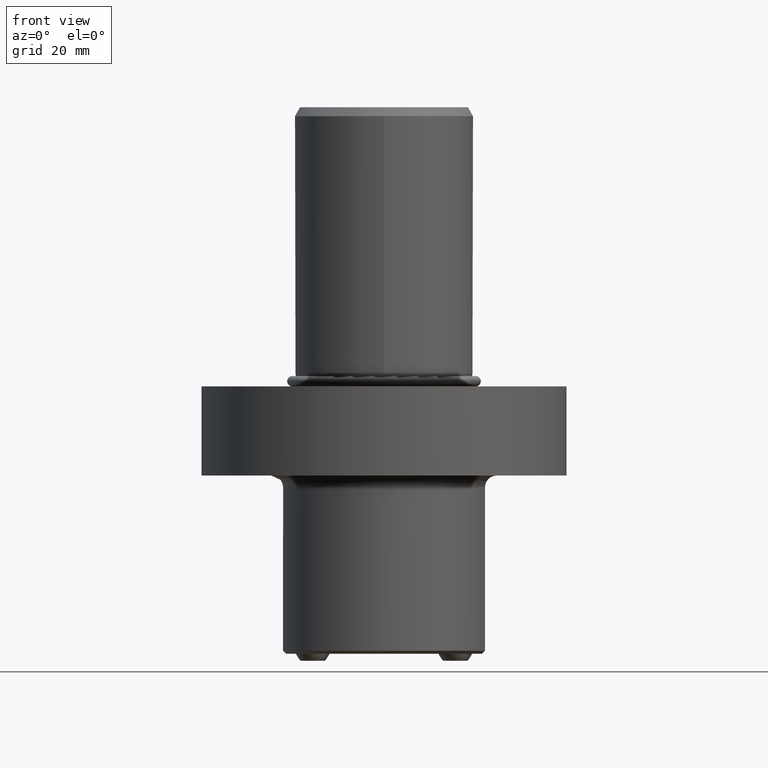
[diagram: clean part render]
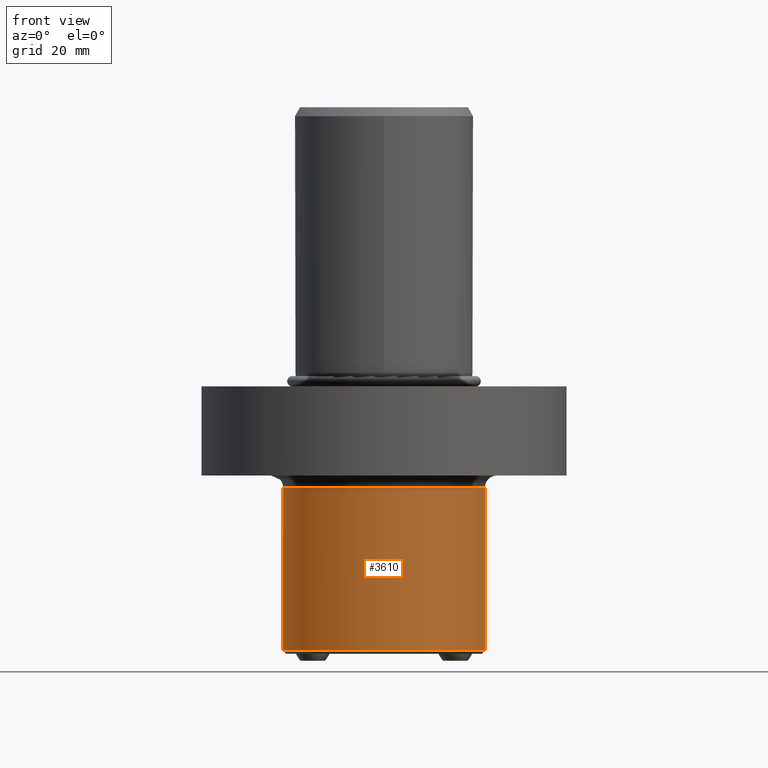
[diagram: same view with one face highlighted and labeled with its STEP entity id]
A machine part, front view. The second image highlights one B-rep face of the part: STEP entity #3610.
In plain terms, the highlighted cylindrical surface (partial cylindrical patch) has radius 34 mm, axis along (0, 0, 1).
Its self-contained STEP definition (entity closure, byte-faithful):
#12 = EDGE_LOOP ( 'NONE', ( #14202, #9301, #2963, #4793, #9363, #3755, #6676, #5484, #2710, #10750 ) ) ;
#293 = AXIS2_PLACEMENT_3D ( 'NONE', #7141, #11951, #8347 ) ;
#345 = EDGE_CURVE ( 'NONE', #11357, #4293, #9616, .T. ) ;
#387 = CARTESIAN_POINT ( 'NONE',  ( -5.809475019311139299, 33.50000000000000000, -90.00000000000001421 ) ) ;
#947 = CIRCLE ( 'NONE', #6694, 34.00000000000000000 ) ;
#1129 = EDGE_CURVE ( 'NONE', #4293, #3880, #947, .T. ) ;
#1393 = VERTEX_POINT ( 'NONE', #13883 ) ;
#1451 = AXIS2_PLACEMENT_3D ( 'NONE', #8862, #13689, #5469 ) ;
#1605 = CARTESIAN_POINT ( 'NONE',  ( -5.809475019311139299, 33.50000000000000000, -90.00000000000001421 ) ) ;
#1701 = LINE ( 'NONE', #6285, #2389 ) ;
#1731 = CARTESIAN_POINT ( 'NONE',  ( -5.935568595613919030, 33.47813320950368876, -41.01164167891553092 ) ) ;
#1869 = DIRECTION ( 'NONE',  ( -2.220446049250309876E-16, -9.860761315262649757E-32, -1.000000000000000000 ) ) ;
#1893 = VECTOR ( 'NONE', #11925, 1000.000000000000000 ) ;
#2389 = VECTOR ( 'NONE', #11168, 1000.000000000000000 ) ;
#2491 = CYLINDRICAL_SURFACE ( 'NONE', #293, 34.00000000000000000 ) ;
#2550 = VERTEX_POINT ( 'NONE', #11847 ) ;
#2635 = FACE_OUTER_BOUND ( 'NONE', #12, .T. ) ;
#2710 = ORIENTED_EDGE ( 'NONE', *, *, #6015, .F. ) ;
#2734 = LINE ( 'NONE', #1605, #6432 ) ;
#2825 = CARTESIAN_POINT ( 'NONE',  ( -6.000380202374731908, 33.46633289706951331, -59.50498020348101136 ) ) ;
#2963 = ORIENTED_EDGE ( 'NONE', *, *, #345, .F. ) ;
#3268 = CARTESIAN_POINT ( 'NONE',  ( -5.809475019311127753, 33.50000000000001421, -38.50000000000001421 ) ) ;
#3347 = VECTOR ( 'NONE', #4941, 1000.000000000000000 ) ;
#3610 = ADVANCED_FACE ( 'Defeature completata1_70', ( #2635 ), #2491, .T. ) ;
#3755 = ORIENTED_EDGE ( 'NONE', *, *, #12726, .F. ) ;
#3813 = CARTESIAN_POINT ( 'NONE',  ( -5.809475019311132193, 33.50000000000000000, -60.50000000000002842 ) ) ;
#3861 = CARTESIAN_POINT ( 'NONE',  ( -5.809475019311134858, 33.50000000000000000, -79.50000000000008527 ) ) ;
#3880 = VERTEX_POINT ( 'NONE', #11800 ) ;
#4082 = CARTESIAN_POINT ( 'NONE',  ( -5.809475019311136634, 33.50000000000000000, -76.49999999999991473 ) ) ;
#4293 = VERTEX_POINT ( 'NONE', #14514 ) ;
#4793 = ORIENTED_EDGE ( 'NONE', *, *, #12093, .F. ) ;
#4941 = DIRECTION ( 'NONE',  ( 2.220446049250309876E-16, 9.860761315262649757E-32, 1.000000000000000000 ) ) ;
#5165 = CARTESIAN_POINT ( 'NONE',  ( -6.000047409867084625, 33.46639256151863862, -40.50934691539104904 ) ) ;
#5183 = CARTESIAN_POINT ( 'NONE',  ( -5.809475019311134858, 33.50000000000000000, -79.50000000000008527 ) ) ;
#5339 = CARTESIAN_POINT ( 'NONE',  ( -5.936546932267455112, 33.47796354913504757, -79.00785259734955446 ) ) ;
#5469 = DIRECTION ( 'NONE',  ( -1.000000000000000000, 4.440892098500630106E-16, 2.040851148208008245E-16 ) ) ;
#5484 = ORIENTED_EDGE ( 'NONE', *, *, #8393, .F. ) ;
#5581 = VECTOR ( 'NONE', #1869, 1000.000000000000000 ) ;
#5805 = EDGE_CURVE ( 'NONE', #3880, #10922, #10909, .T. ) ;
#6015 = EDGE_CURVE ( 'NONE', #7312, #1393, #1701, .T. ) ;
#6205 = LINE ( 'NONE', #9659, #1893 ) ;
#6285 = CARTESIAN_POINT ( 'NONE',  ( -5.809475019311139299, 33.50000000000000000, -90.00000000000001421 ) ) ;
#6432 = VECTOR ( 'NONE', #10858, 1000.000000000000000 ) ;
#6538 = CARTESIAN_POINT ( 'NONE',  ( -5.809475019311127753, 33.50000000000000000, -41.49999999999998579 ) ) ;
#6676 = ORIENTED_EDGE ( 'NONE', *, *, #13674, .F. ) ;
#6694 = AXIS2_PLACEMENT_3D ( 'NONE', #11366, #11148, #14773 ) ;
#7070 = CARTESIAN_POINT ( 'NONE',  ( -5.809475019311136634, 33.50000000000000000, -76.49999999999991473 ) ) ;
#7141 = CARTESIAN_POINT ( 'NONE',  ( -1.998401444325279879E-14, -8.874685183736380008E-30, -90.00000000000000000 ) ) ;
#7312 = VERTEX_POINT ( 'NONE', #7070 ) ;
#7348 = CARTESIAN_POINT ( 'NONE',  ( -5.809475019311132193, 33.50000000000000000, -57.49999999999996447 ) ) ;
#7736 = CARTESIAN_POINT ( 'NONE',  ( -5.935944016570961601, 33.47806810506571651, -38.98981232019890086 ) ) ;
#7750 = EDGE_CURVE ( 'NONE', #10922, #7312, #8027, .T. ) ;
#7901 = VERTEX_POINT ( 'NONE', #13546 ) ;
#8027 = B_SPLINE_CURVE_WITH_KNOTS ( 'NONE', 3,
 ( #5183, #5339, #10920, #9769, #14376, #4082 ),
 .UNSPECIFIED., .F., .F.,
 ( 4, 2, 4 ),
 ( 0.03608404672934648061, 0.03759074659813965713, 0.03909744646693283365 ),
 .UNSPECIFIED. ) ;
#8347 = DIRECTION ( 'NONE',  ( -1.000000000000000000, 4.440892098500630106E-16, 4.081702296416016490E-16 ) ) ;
#8393 = EDGE_CURVE ( 'NONE', #1393, #2550, #12503, .T. ) ;
#8862 = CARTESIAN_POINT ( 'NONE',  ( -7.549516567451069208E-15, -3.352658847189300173E-30, -34.00000000000000000 ) ) ;
#9301 = ORIENTED_EDGE ( 'NONE', *, *, #1129, .F. ) ;
#9363 = ORIENTED_EDGE ( 'NONE', *, *, #11434, .F. ) ;
#9616 = LINE ( 'NONE', #14225, #5581 ) ;
#9659 = CARTESIAN_POINT ( 'NONE',  ( -5.809475019311139299, 33.50000000000000000, -90.00000000000001421 ) ) ;
#9769 = CARTESIAN_POINT ( 'NONE',  ( -5.999616426516841905, 33.46646983004325193, -77.48602498735070299 ) ) ;
#10312 = CIRCLE ( 'NONE', #1451, 34.00000000000000000 ) ;
#10446 = B_SPLINE_CURVE_WITH_KNOTS ( 'NONE', 3,
 ( #6538, #1731, #5165, #11133, #7736, #14352 ),
 .UNSPECIFIED., .F., .F.,
 ( 4, 2, 4 ),
 ( 0.02668379592870614644, 0.02819495610199968666, 0.02970611627529322687 ),
 .UNSPECIFIED. ) ;
#10604 = CARTESIAN_POINT ( 'NONE',  ( -5.809475019311130417, 33.50000000000001421, -34.00000000000000000 ) ) ;
#10750 = ORIENTED_EDGE ( 'NONE', *, *, #7750, .F. ) ;
#10858 = DIRECTION ( 'NONE',  ( 2.220446049250309876E-16, 9.860761315262649757E-32, 1.000000000000000000 ) ) ;
#10909 = LINE ( 'NONE', #387, #3347 ) ;
#10920 = CARTESIAN_POINT ( 'NONE',  ( -6.000380202374748784, 33.46633289706951331, -78.50498020348101136 ) ) ;
#10922 = VERTEX_POINT ( 'NONE', #3861 ) ;
#11095 = VERTEX_POINT ( 'NONE', #10604 ) ;
#11133 = CARTESIAN_POINT ( 'NONE',  ( -5.999952538206826169, 33.46640957051693022, -39.48953673968002676 ) ) ;
#11148 = DIRECTION ( 'NONE',  ( -2.220446049250309876E-16, -9.860761315262649757E-32, -1.000000000000000000 ) ) ;
#11168 = DIRECTION ( 'NONE',  ( 2.220446049250309876E-16, 9.860761315262649757E-32, 1.000000000000000000 ) ) ;
#11357 = VERTEX_POINT ( 'NONE', #12837 ) ;
#11366 = CARTESIAN_POINT ( 'NONE',  ( -1.976196983832780220E-14, -8.776077570583750730E-30, -89.00000000000000000 ) ) ;
#11434 = EDGE_CURVE ( 'NONE', #13117, #11095, #6205, .T. ) ;
#11800 = CARTESIAN_POINT ( 'NONE',  ( -5.809475019311139299, 33.50000000000000000, -89.00000000000000000 ) ) ;
#11847 = CARTESIAN_POINT ( 'NONE',  ( -5.809475019311132193, 33.50000000000000000, -57.49999999999996447 ) ) ;
#11925 = DIRECTION ( 'NONE',  ( 2.220446049250309876E-16, 9.860761315262649757E-32, 1.000000000000000000 ) ) ;
#11951 = DIRECTION ( 'NONE',  ( 2.220446049250309876E-16, 9.860761315262649757E-32, 1.000000000000000000 ) ) ;
#12082 = CARTESIAN_POINT ( 'NONE',  ( -5.999616426516825030, 33.46646983004325193, -58.48602498735074562 ) ) ;
#12093 = EDGE_CURVE ( 'NONE', #11095, #11357, #10312, .T. ) ;
#12503 = B_SPLINE_CURVE_WITH_KNOTS ( 'NONE', 3,
 ( #3813, #12912, #2825, #12082, #13222, #7348 ),
 .UNSPECIFIED., .F., .F.,
 ( 4, 2, 4 ),
 ( 0.03608404672934650836, 0.03759074659813962938, 0.03909744646693275039 ),
 .UNSPECIFIED. ) ;
#12726 = EDGE_CURVE ( 'NONE', #7901, #13117, #10446, .T. ) ;
#12837 = CARTESIAN_POINT ( 'NONE',  ( 34.00000000000000000, -1.093523401780109762E-14, -34.00000000000000000 ) ) ;
#12912 = CARTESIAN_POINT ( 'NONE',  ( -5.936546932267442678, 33.47796354913504757, -60.00785259734953314 ) ) ;
#13117 = VERTEX_POINT ( 'NONE', #3268 ) ;
#13222 = CARTESIAN_POINT ( 'NONE',  ( -5.935388339477055020, 33.47816446901186538, -57.98766019206826172 ) ) ;
#13546 = CARTESIAN_POINT ( 'NONE',  ( -5.809475019311127753, 33.50000000000000000, -41.49999999999998579 ) ) ;
#13674 = EDGE_CURVE ( 'NONE', #2550, #7901, #2734, .T. ) ;
#13689 = DIRECTION ( 'NONE',  ( 2.220446049250309876E-16, 9.860761315262649757E-32, 1.000000000000000000 ) ) ;
#13883 = CARTESIAN_POINT ( 'NONE',  ( -5.809475019311132193, 33.50000000000000000, -60.50000000000002842 ) ) ;
#14202 = ORIENTED_EDGE ( 'NONE', *, *, #5805, .F. ) ;
#14225 = CARTESIAN_POINT ( 'NONE',  ( 34.00000000000000000, -1.093523401780109762E-14, -90.00000000000000000 ) ) ;
#14352 = CARTESIAN_POINT ( 'NONE',  ( -5.809475019311127753, 33.50000000000001421, -38.50000000000001421 ) ) ;
#14376 = CARTESIAN_POINT ( 'NONE',  ( -5.935388339477064790, 33.47816446901186538, -76.98766019206821909 ) ) ;
#14514 = CARTESIAN_POINT ( 'NONE',  ( 34.00000000000000000, -1.926283225200309874E-14, -89.00000000000000000 ) ) ;
#14773 = DIRECTION ( 'NONE',  ( -1.000000000000000000, 4.440892098500630106E-16, 4.081702296416016490E-16 ) ) ;